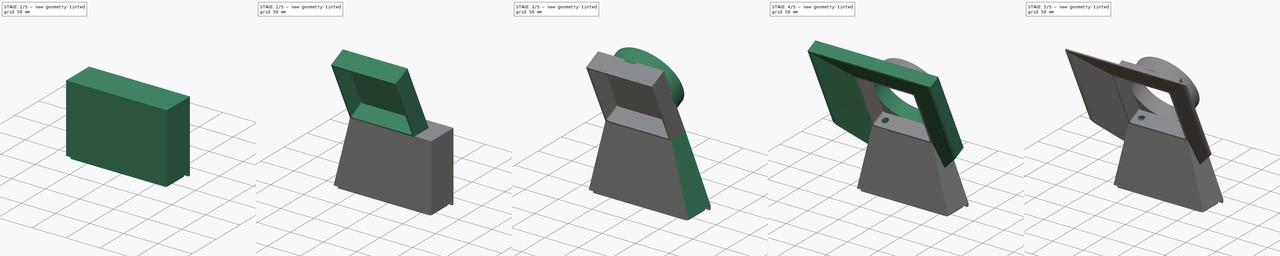
[diagram: build sequence overview — one tinted view per stage of 5, left to right]
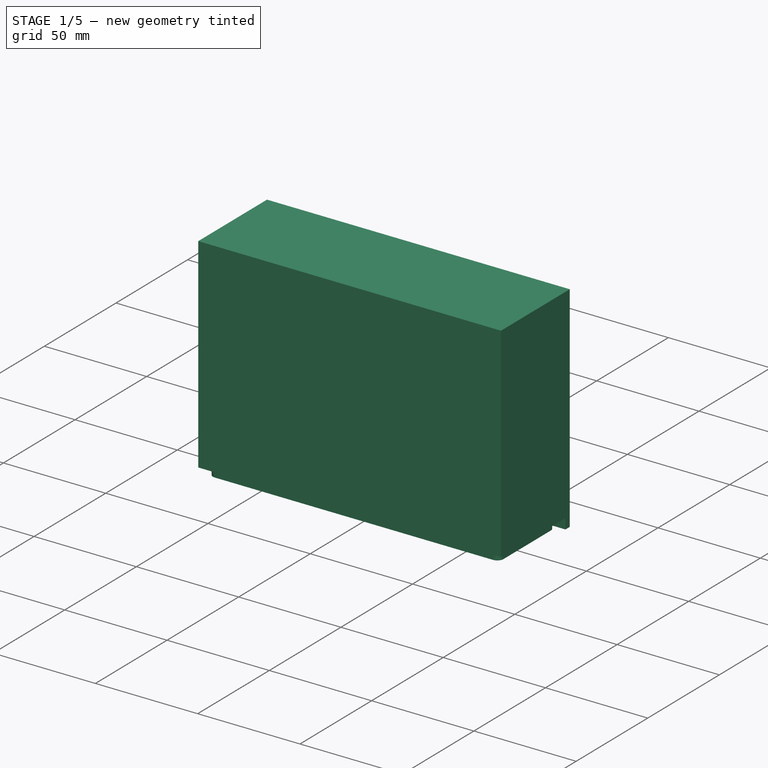
[diagram: stage 1 of 5 — iso view after this stage's code; geometry added in this stage tinted green]
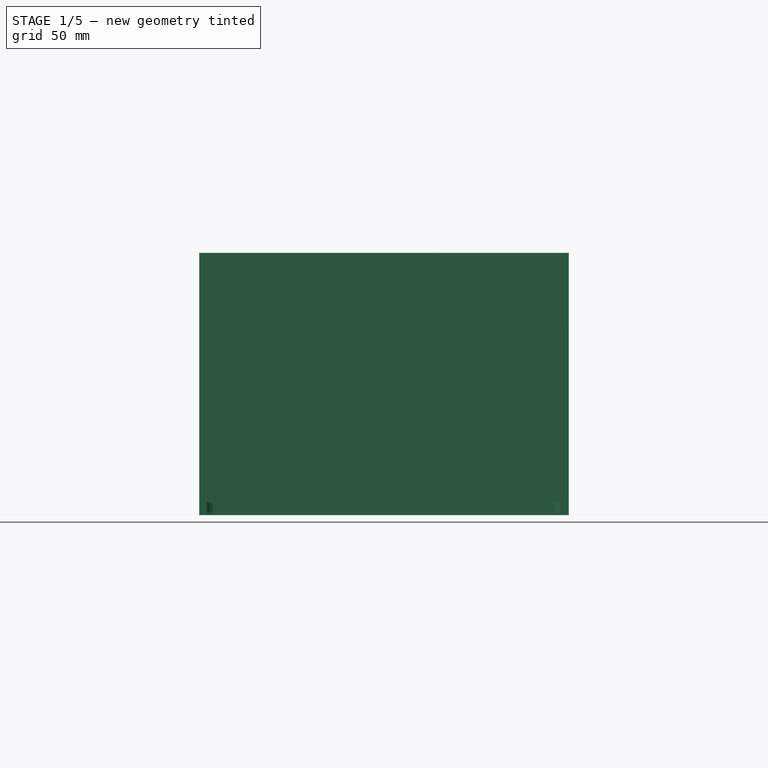
[diagram: stage 1 of 5 — front view after this stage's code; geometry added in this stage tinted green]
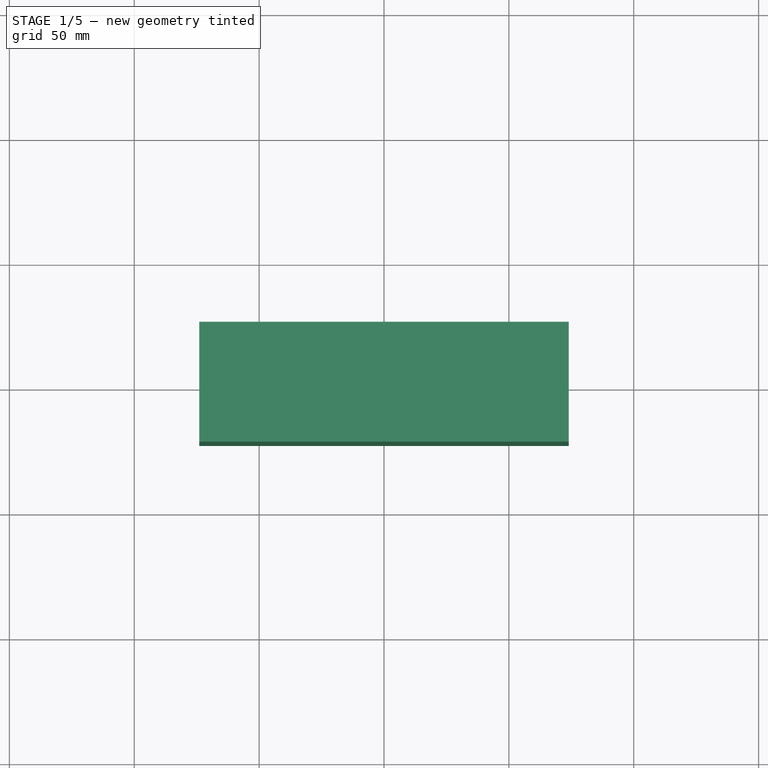
[diagram: stage 1 of 5 — top view after this stage's code; geometry added in this stage tinted green]
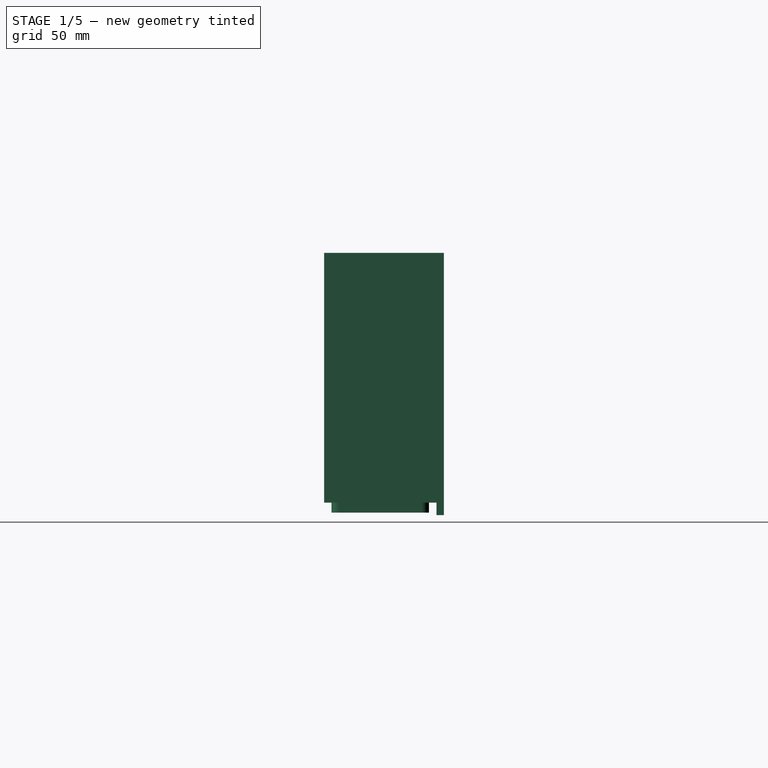
[diagram: stage 1 of 5 — right view after this stage's code; geometry added in this stage tinted green]
FCSTD DOCUMENT  (FreeCAD 1.0R39319 (Git))
Label: SolderingVent
License: All rights reserved
LicenseURL: https://en.wikipedia.org/wiki/All_rights_reserved
objects: Sketcher::SketchObject×13, PartDesign::Pocket×7, PartDesign::Pad×6, PartDesign::Fillet×4, PartDesign::Chamfer×2, PartDesign::Body×1
note: 84 computed .brp shape members not serialized (recipe doc carries the construction recipe); baked Part::Feature solids carry a one-line shape summary decoded from their .brp

FEATURE [Sketcher::SketchObject] Sketch
  ArcFitTolerance = 1e-06
  AttachmentSupport = -> [XY_Plane]
  FullyConstrained = true
  MakeInternals = false
  MapMode = 5
  sketch-geometry (4):
    g0: LineSegment StartX=-71 StartY=19.5 StartZ=0 EndX=-71 EndY=-19.5 EndZ=0
    g1: LineSegment StartX=-71 StartY=-19.5 StartZ=0 EndX=71 EndY=-19.5 EndZ=0
    g2: LineSegment StartX=71 StartY=-19.5 StartZ=0 EndX=71 EndY=19.5 EndZ=0
    g3: LineSegment StartX=71 StartY=19.5 StartZ=0 EndX=-71 EndY=19.5 EndZ=0
  constraints (12):
    c: Coincident(g0,g1)
    c: Coincident(g1,g2)
    c: Coincident(g2,g3)
    c: Coincident(g3,g0)
    c: Vertical(g0)
    c: Vertical(g2)
    c: Horizontal(g1)
    c: Horizontal(g3)
    c: Distance(g0,g2) = 142
    c: Distance(g1,g3) = 39
    c: Distance(g-2,g0) = 71
    c: Distance(g1,g-1) = 19.5
FEATURE [PartDesign::Pad] Pad
  Direction = (0,0,1)
  Length = 4
  Length2 = 10
  Profile = -> Sketch
  ReferenceAxis = -> Sketch [N_Axis]
  Refine = true
  Suppressed = false
  Type = 0
FEATURE [Sketcher::SketchObject] Sketch001
  ArcFitTolerance = 1e-06
  FullyConstrained = true
  MakeInternals = false
  MapMode = 5
  Placement = pos=(0,0,4) rot=(0,0,1;0rad)
  sketch-geometry (4):
    g0: LineSegment StartX=-74 StartY=25.5 StartZ=0 EndX=-74 EndY=-22.5 EndZ=0
    g1: LineSegment StartX=-74 StartY=-22.5 StartZ=0 EndX=74 EndY=-22.5 EndZ=0
    g2: LineSegment StartX=74 StartY=-22.5 StartZ=0 EndX=74 EndY=25.5 EndZ=0
    g3: LineSegment StartX=74 StartY=25.5 StartZ=0 EndX=-74 EndY=25.5 EndZ=0
  constraints (12):
    c: Coincident(g0,g1)
    c: Coincident(g1,g2)
    c: Coincident(g2,g3)
    c: Coincident(g3,g0)
    c: Vertical(g0)
    c: Vertical(g2)
    c: Horizontal(g1)
    c: Horizontal(g3)
    c: Distance(g0,g2) = 148
    c: Distance(g1,g3) = 48
    c: Distance(g-2,g0) = 74
    c: Distance(g1,g-1) = 22.5
FEATURE [PartDesign::Pad] Pad001
  BaseFeature = -> Pad
  Direction = (0,0,1)
  Length = 100
  Length2 = 10
  Profile = -> Sketch001
  ReferenceAxis = -> Sketch001 [N_Axis]
  Refine = true
  Suppressed = false
  Type = 0
FEATURE [PartDesign::Fillet] Fillet
  Base = -> Pad001 [Edge5,Edge1,Edge2,Edge8]
  BaseFeature = -> Pad001
  Radius = 3
  Refine = true
  SupportTransform = false
  Suppressed = false
  UseAllEdges = false
FEATURE [Sketcher::SketchObject] Sketch002
  ArcFitTolerance = 1e-06
  AttachmentSupport = -> [Fillet]
  FullyConstrained = true
  MakeInternals = false
  MapMode = 5
  Placement = pos=(0,0,4) rot=(1,0,0;3.14159rad)
  sketch-geometry (4):
    g0: LineSegment StartX=-74 StartY=-22.5 StartZ=0 EndX=-74 EndY=-25.5 EndZ=0
    g1: LineSegment StartX=-74 StartY=-25.5 StartZ=0 EndX=74 EndY=-25.5 EndZ=0
    g2: LineSegment StartX=74 StartY=-25.5 StartZ=0 EndX=74 EndY=-22.5 EndZ=0
    g3: LineSegment StartX=74 StartY=-22.5 StartZ=0 EndX=-74 EndY=-22.5 EndZ=0
  constraints (12):
    c: Coincident(g0,g1)
    c: Coincident(g1,g2)
    c: Coincident(g2,g3)
    c: Coincident(g3,g0)
    c: Vertical(g0)
    c: Vertical(g2)
    c: Horizontal(g1)
    c: Horizontal(g3)
    c: Distance(g0,g2) = 148
    c: Distance(g1,g3) = 3
    c: Distance(g-2,g0) = 74
    c: Distance(g1,g-1) = 25.5
FEATURE [PartDesign::Pad] Pad002
  BaseFeature = -> Fillet
  Direction = (0,0,-1)
  Length = 5
  Length2 = 10
  Profile = -> Sketch002
  ReferenceAxis = -> Sketch002 [N_Axis]
  Refine = true
  Suppressed = false
  Type = 0
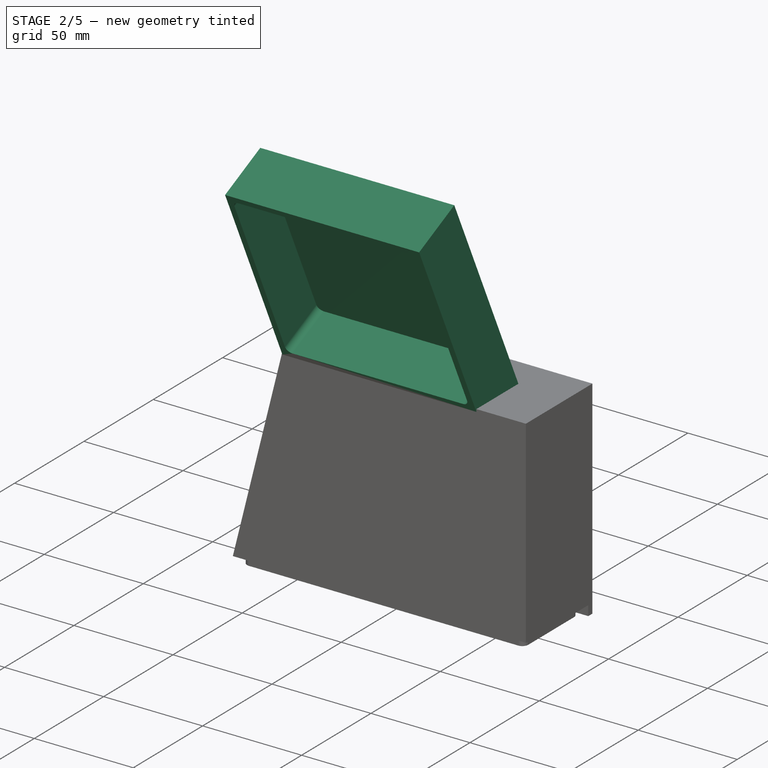
[diagram: stage 2 of 5 — iso view after this stage's code; geometry added in this stage tinted green]
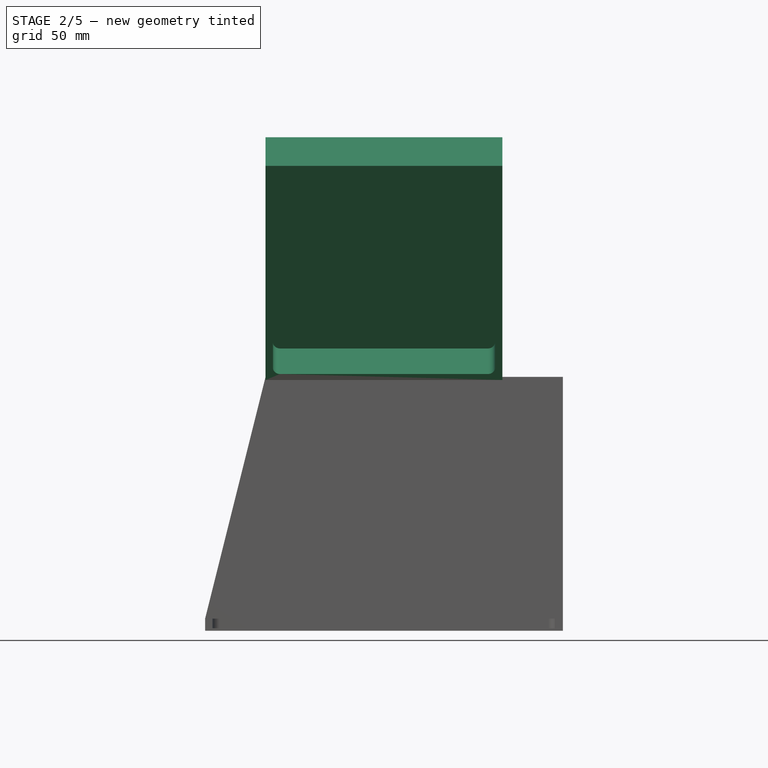
[diagram: stage 2 of 5 — front view after this stage's code; geometry added in this stage tinted green]
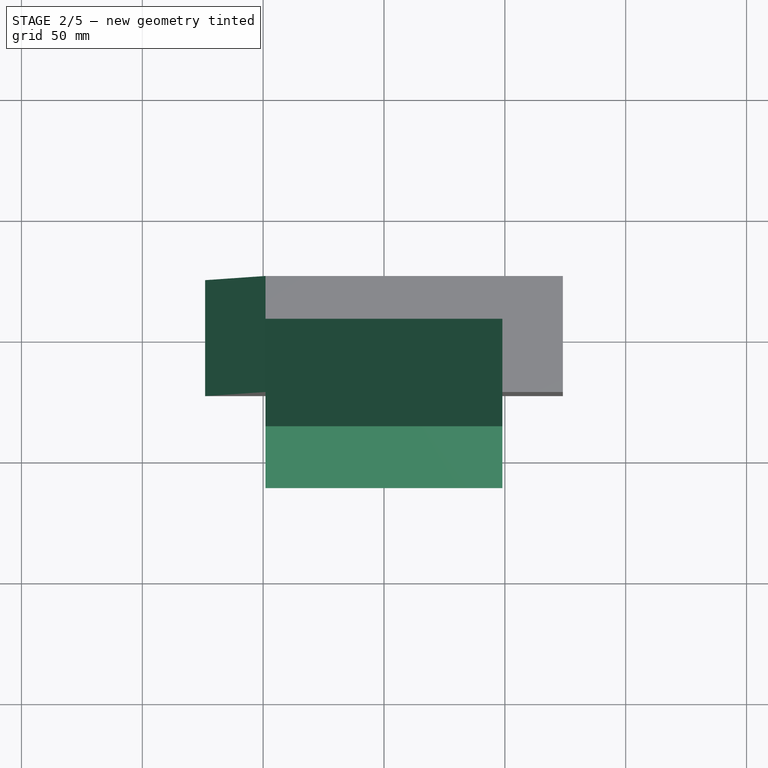
[diagram: stage 2 of 5 — top view after this stage's code; geometry added in this stage tinted green]
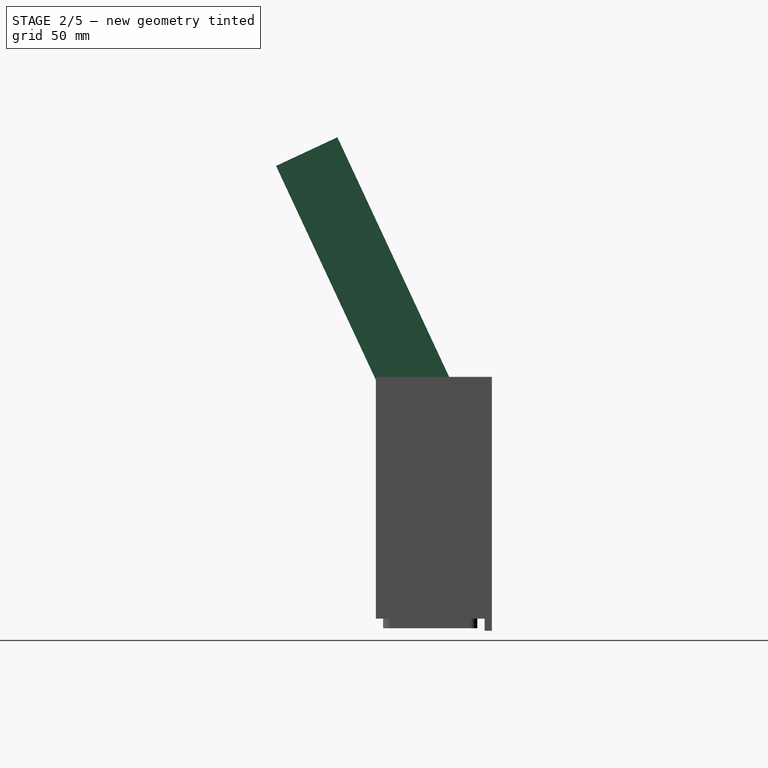
[diagram: stage 2 of 5 — right view after this stage's code; geometry added in this stage tinted green]
FEATURE [Sketcher::SketchObject] Sketch003
  ArcFitTolerance = 1e-06
  AttachmentOffset = pos=(0,-2,8) rot=(1,0,0;0.436332rad)
  AttachmentSupport = -> [Pad002]
  FullyConstrained = true
  MakeInternals = false
  MapMode = 5
  Placement = pos=(0,-2,112) rot=(1,0,0;0.436332rad)
  sketch-geometry (4):
    g0: LineSegment StartX=-49 StartY=5.5 StartZ=0 EndX=-49 EndY=-22.5 EndZ=0
    g1: LineSegment StartX=-49 StartY=-22.5 StartZ=0 EndX=49 EndY=-22.5 EndZ=0
    g2: LineSegment StartX=49 StartY=-22.5 StartZ=0 EndX=49 EndY=5.5 EndZ=0
    g3: LineSegment StartX=49 StartY=5.5 StartZ=0 EndX=-49 EndY=5.5 EndZ=0
  constraints (12):
    c: Coincident(g0,g1)
    c: Coincident(g1,g2)
    c: Coincident(g2,g3)
    c: Coincident(g3,g0)
    c: Vertical(g0)
    c: Vertical(g2)
    c: Horizontal(g1)
    c: Horizontal(g3)
    c: Distance(g0,g2) = 98
    c: Distance(g1,g3) = 28
    c: Distance(g-1,g3) = 5.5
    c: Distance(g2,g-2) = 49
FEATURE [PartDesign::Pad] Pad003
  BaseFeature = -> Pad002
  Direction = (0,-0.422618,0.906308)
  Length = 98
  Length2 = 20
  Profile = -> Sketch003
  ReferenceAxis = -> Sketch003 [N_Axis]
  Refine = true
  Suppressed = false
  Type = 4
FEATURE [Sketcher::SketchObject] Sketch004
  ArcFitTolerance = 1e-06
  AttachmentSupport = -> [Pad003]
  ExternalGeometry = -> [Pad003]
  FullyConstrained = true
  MakeInternals = false
  MapMode = 5
  Placement = pos=(0,20.8638,9.72894) rot=(1,0,0;2.00713rad)
  sketch-geometry (4):
    g0: LineSegment StartX=-46 StartY=197.352 StartZ=0 EndX=-46 EndY=105.352 EndZ=0
    g1: LineSegment StartX=-46 StartY=105.352 StartZ=0 EndX=46 EndY=105.352 EndZ=0
    g2: LineSegment StartX=46 StartY=105.352 StartZ=0 EndX=46 EndY=197.352 EndZ=0
    g3: LineSegment StartX=46 StartY=197.352 StartZ=0 EndX=-46 EndY=197.352 EndZ=0
  constraints (12):
    c: Coincident(g0,g1)
    c: Coincident(g1,g2)
    c: Coincident(g2,g3)
    c: Coincident(g3,g0)
    c: Vertical(g0)
    c: Vertical(g2)
    c: Horizontal(g1)
    c: Horizontal(g3)
    c: Distance(g0,g2) = 92
    c: Distance(g1,g3) = 92
    c: Distance(g-2,g0) = 46
    c: Distance(g3,g-3) = 3
FEATURE [PartDesign::Pocket] Pocket
  BaseFeature = -> Pad003
  Direction = (0,0.906308,0.422618)
  Length = 25
  Length2 = 5
  Profile = -> Sketch004
  ReferenceAxis = -> Sketch004 [N_Axis]
  Refine = true
  Suppressed = false
  Type = 0
FEATURE [PartDesign::Fillet] Fillet001
  Base = -> Pocket [Edge62,Edge63,Edge67,Edge65]
  BaseFeature = -> Pocket
  Radius = 3
  Refine = true
  SupportTransform = false
  Suppressed = false
  UseAllEdges = false
FEATURE [Sketcher::SketchObject] Sketch005
  ArcFitTolerance = 1e-06
  AttachmentSupport = -> [Fillet001]
  ExternalGeometry = -> [Fillet001]
  FullyConstrained = true
  MakeInternals = false
  MapMode = 5
  Placement = pos=(0,-22.5,0) rot=(1,0,0;1.5708rad)
  sketch-geometry (3):
    g0: LineSegment StartX=-74 StartY=104 StartZ=0 EndX=-49 EndY=104 EndZ=0
    g1: LineSegment StartX=-49 StartY=104 StartZ=0 EndX=-74 EndY=4 EndZ=0
    g2: LineSegment StartX=-74 StartY=4 StartZ=0 EndX=-74 EndY=104 EndZ=0
  constraints (6):
    c: Coincident(g-4,g0)
    c: Coincident(g0,g-3)
    c: Coincident(g0,g1)
    c: Coincident(g1,g-4)
    c: Coincident(g1,g2)
    c: Coincident(g2,g0)
FEATURE [PartDesign::Pocket] Pocket001
  BaseFeature = -> Fillet001
  Direction = (0,1,-2e-16)
  Length = 5
  Length2 = 5
  Profile = -> Sketch005
  ReferenceAxis = -> Sketch005 [N_Axis]
  Refine = true
  Suppressed = false
  Type = 1
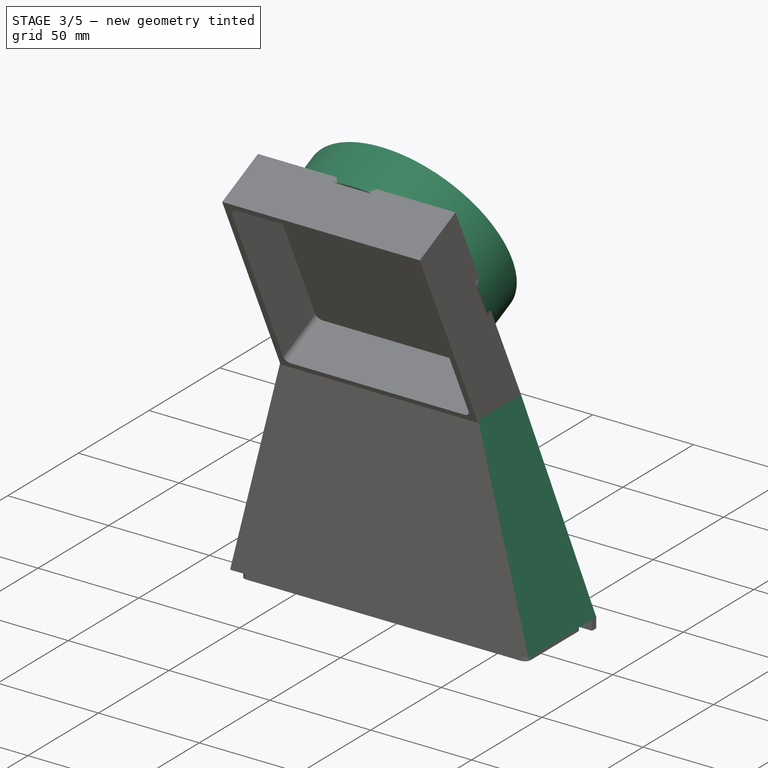
[diagram: stage 3 of 5 — iso view after this stage's code; geometry added in this stage tinted green]
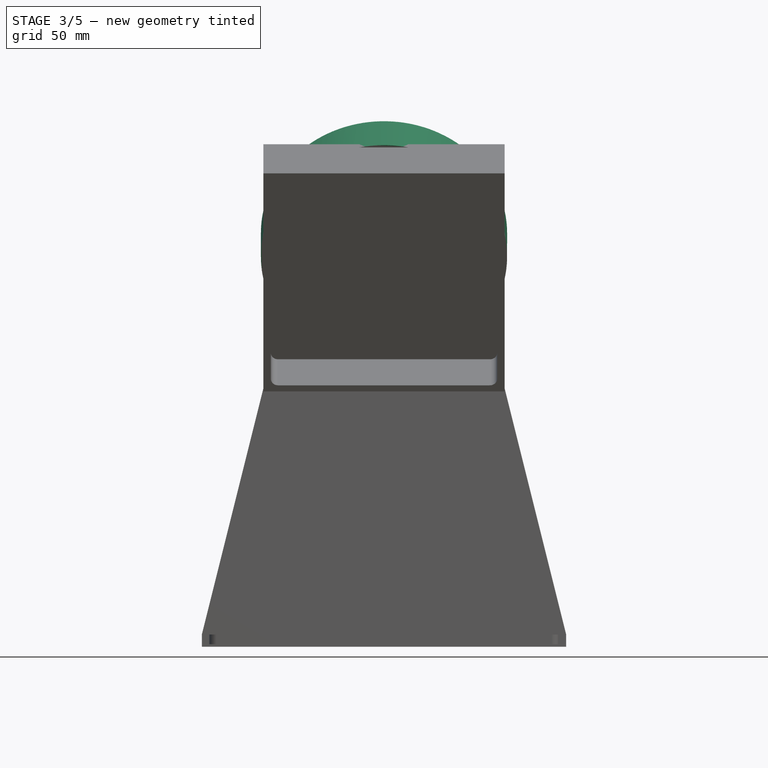
[diagram: stage 3 of 5 — front view after this stage's code; geometry added in this stage tinted green]
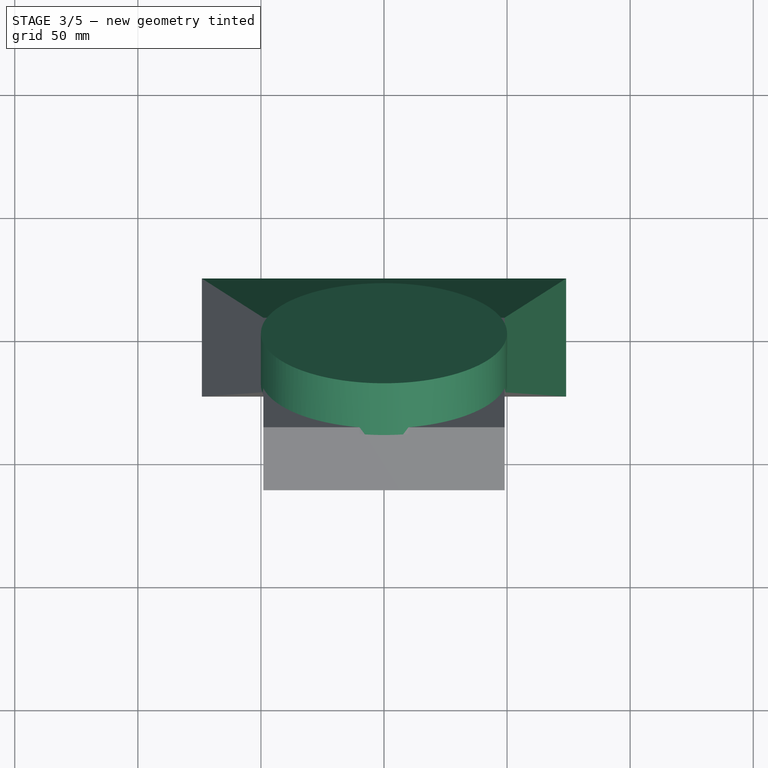
[diagram: stage 3 of 5 — top view after this stage's code; geometry added in this stage tinted green]
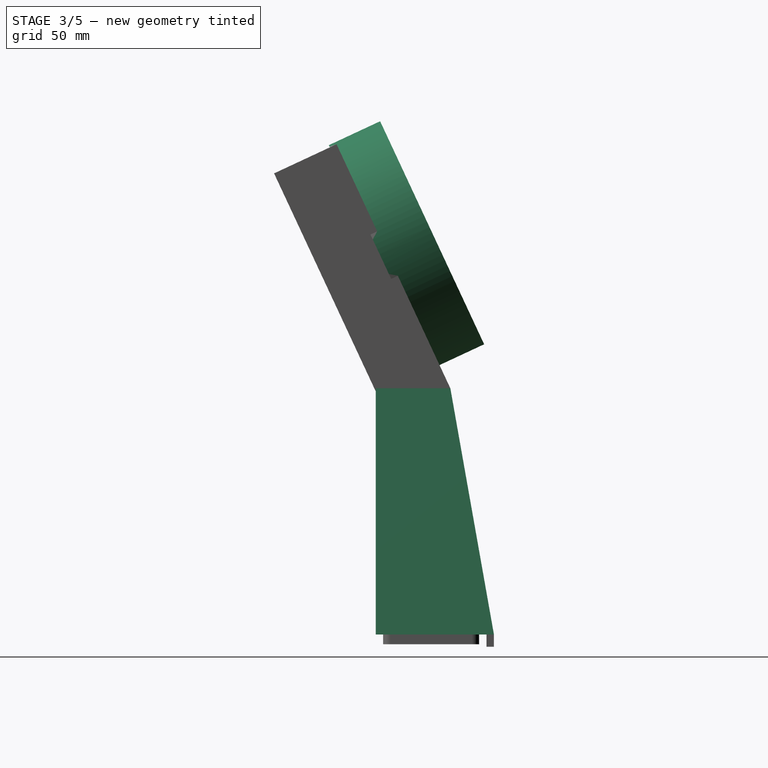
[diagram: stage 3 of 5 — right view after this stage's code; geometry added in this stage tinted green]
FEATURE [Sketcher::SketchObject] Sketch006
  ArcFitTolerance = 1e-06
  AttachmentSupport = -> [Pocket001]
  ExternalGeometry = -> [Pocket001]
  FullyConstrained = true
  MakeInternals = false
  MapMode = 5
  Placement = pos=(0,-22.5,0) rot=(1,0,0;1.5708rad)
  sketch-geometry (3):
    g0: LineSegment StartX=49 StartY=104 StartZ=0 EndX=74 EndY=4 EndZ=0
    g1: LineSegment StartX=74 StartY=4 StartZ=0 EndX=74 EndY=104 EndZ=0
    g2: LineSegment StartX=74 StartY=104 StartZ=0 EndX=49 EndY=104 EndZ=0
  constraints (6):
    c: Coincident(g-4,g0)
    c: Coincident(g0,g-3)
    c: Coincident(g0,g1)
    c: Coincident(g1,g-4)
    c: Coincident(g1,g2)
    c: Coincident(g2,g0)
FEATURE [PartDesign::Pocket] Pocket002
  BaseFeature = -> Pocket001
  Direction = (0,1,-2e-16)
  Length = 5
  Length2 = 5
  Profile = -> Sketch006
  ReferenceAxis = -> Sketch006 [N_Axis]
  Refine = true
  Suppressed = false
  Type = 1
FEATURE [Sketcher::SketchObject] Sketch007
  ArcFitTolerance = 1e-06
  AttachmentSupport = -> [Pocket002]
  ExternalGeometry = -> [Pocket002]
  FullyConstrained = true
  MakeInternals = false
  MapMode = 5
  Placement = pos=(-49,0,0) rot=(0.57735,-0.57735,-0.57735;2.0944rad)
  sketch-geometry (3):
    g0: LineSegment StartX=-7.79904 StartY=104 StartZ=0 EndX=-25.5 EndY=4 EndZ=0
    g1: LineSegment StartX=-25.5 StartY=4 StartZ=0 EndX=-25.5 EndY=104 EndZ=0
    g2: LineSegment StartX=-25.5 StartY=104 StartZ=0 EndX=-7.79904 EndY=104 EndZ=0
  constraints (6):
    c: Coincident(g-4,g0)
    c: Coincident(g0,g-3)
    c: Coincident(g0,g1)
    c: Coincident(g1,g-4)
    c: Coincident(g1,g2)
    c: Coincident(g2,g0)
FEATURE [PartDesign::Pocket] Pocket003
  BaseFeature = -> Pocket002
  Direction = (1,0,0)
  Length = 1000
  Length2 = 1000
  Profile = -> Sketch007
  ReferenceAxis = -> Sketch007 [N_Axis]
  Refine = true
  Suppressed = false
  Type = 4
FEATURE [Sketcher::SketchObject] Sketch008
  ArcFitTolerance = 1e-06
  AttachmentOffset = pos=(0,0,-3) rot=(0,0,1;0rad)
  AttachmentSupport = -> [Pocket003]
  ExternalGeometry = -> [Pocket003]
  FullyConstrained = true
  MakeInternals = false
  MapMode = 5
  Placement = pos=(0,43.5215,20.2944) rot=(0,0.5373,0.843391;3.14159rad)
  sketch-geometry (1):
    g0: Circle CenterX=0 CenterY=151.352 CenterZ=0 NormalX=0 NormalY=0 NormalZ=1 AngleXU=0 Radius=50
  constraints (3):
    c: Diameter(g0) = 100
    c: Distance(g0,g-3) = 49
    c: PointOnObject(g0,g-2)
FEATURE [PartDesign::Pad] Pad004
  BaseFeature = -> Pocket003
  Direction = (0,0.906308,0.422618)
  Length = 23
  Length2 = 10
  Profile = -> Sketch008
  ReferenceAxis = -> Sketch008 [N_Axis]
  Refine = true
  Suppressed = false
  Type = 0
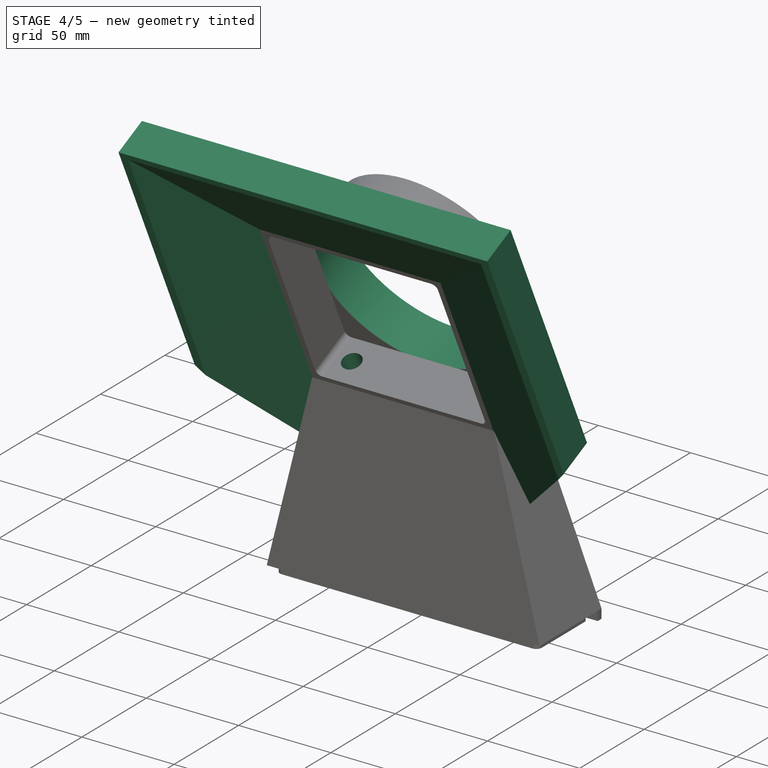
[diagram: stage 4 of 5 — iso view after this stage's code; geometry added in this stage tinted green]
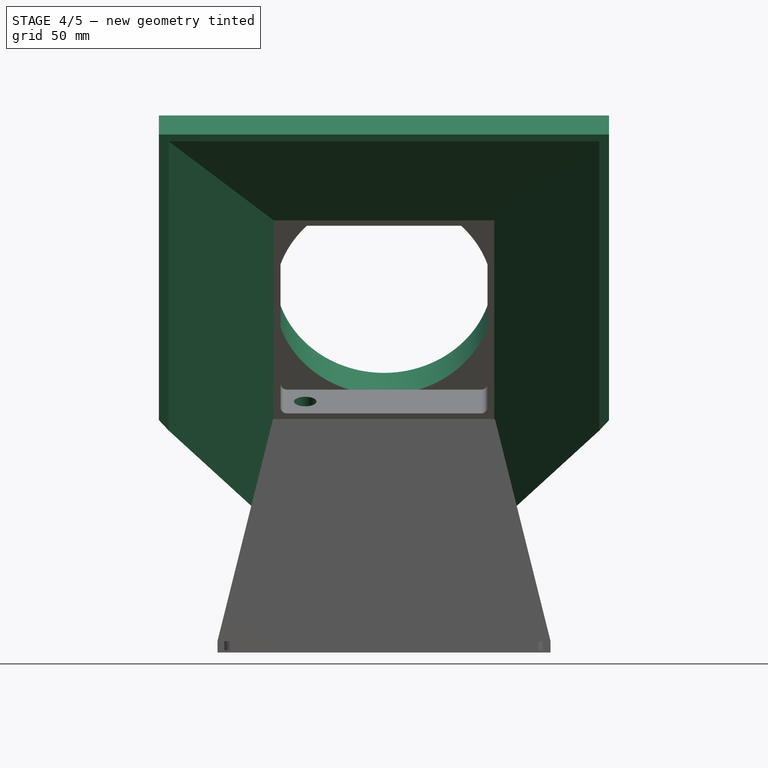
[diagram: stage 4 of 5 — front view after this stage's code; geometry added in this stage tinted green]
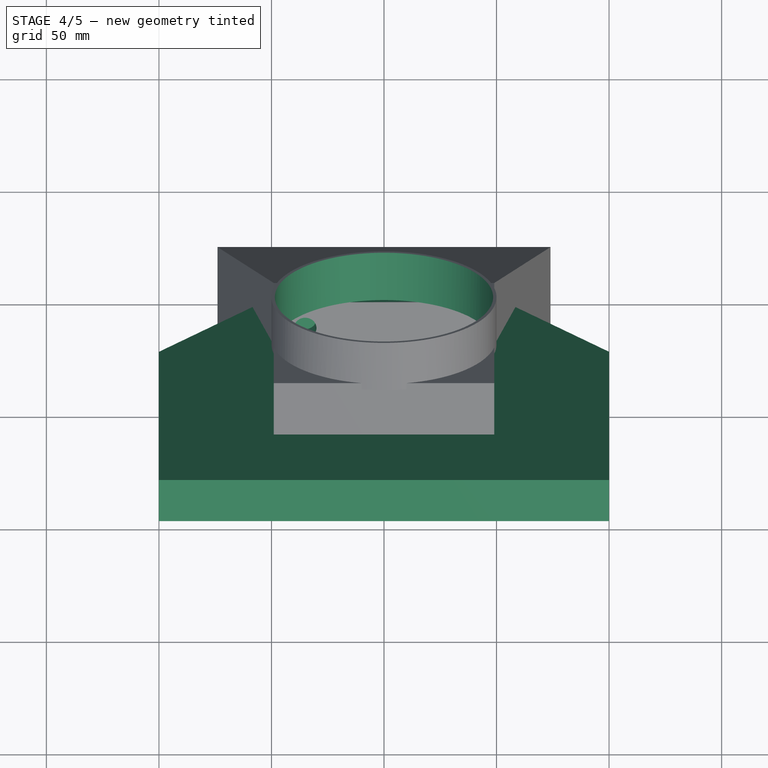
[diagram: stage 4 of 5 — top view after this stage's code; geometry added in this stage tinted green]
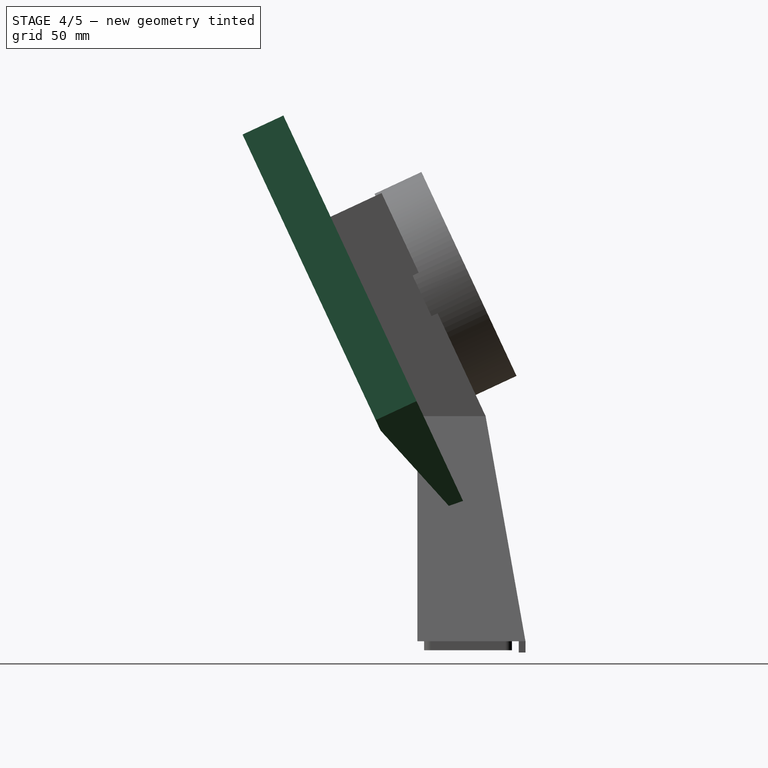
[diagram: stage 4 of 5 — right view after this stage's code; geometry added in this stage tinted green]
FEATURE [Sketcher::SketchObject] Sketch009
  ArcFitTolerance = 1e-06
  AttachmentSupport = -> [Pad004]
  ExternalGeometry = -> [Pad004]
  FullyConstrained = true
  MakeInternals = false
  MapMode = 5
  Placement = pos=(-8.5e-15,64.3665,30.0146) rot=(0,0.5373,0.843391;3.14159rad)
  sketch-geometry (1):
    g0: Circle CenterX=-8.9e-15 CenterY=151.352 CenterZ=0 NormalX=0 NormalY=0 NormalZ=1 AngleXU=0 Radius=48.5
  constraints (2):
    c: Diameter(g0) = 97
    c: Coincident(g-3,g0)
FEATURE [PartDesign::Pocket] Pocket004
  BaseFeature = -> Pad004
  Direction = (0,-0.906308,-0.422618)
  Length = 23
  Length2 = 5
  Profile = -> Sketch009
  ReferenceAxis = -> Sketch009 [N_Axis]
  Refine = true
  Suppressed = false
  Type = 0
FEATURE [Sketcher::SketchObject] Sketch011
  ArcFitTolerance = 1e-06
  AttachmentOffset = pos=(0,0,-3) rot=(0,0,1;0rad)
  AttachmentSupport = -> [Pocket004]
  FullyConstrained = true
  MakeInternals = false
  MapMode = 5
  Placement = pos=(0,23.5827,10.9968) rot=(1,0,0;2.00713rad)
  sketch-geometry (8):
    g0: LineSegment StartX=-49 StartY=200 StartZ=0 EndX=49 EndY=200 EndZ=0
    g1: LineSegment StartX=-49 StartY=200 StartZ=0 EndX=-49 EndY=50 EndZ=0
    g2: LineSegment StartX=49 StartY=200 StartZ=0 EndX=49 EndY=50 EndZ=0
    g3: LineSegment StartX=-100 StartY=250 StartZ=0 EndX=100 EndY=250 EndZ=0
    g4: LineSegment StartX=-100 StartY=250 StartZ=0 EndX=-100 EndY=110 EndZ=0
    g5: LineSegment StartX=-100 StartY=110 StartZ=0 EndX=-49 EndY=50 EndZ=0
    g6: LineSegment StartX=100 StartY=250 StartZ=0 EndX=100 EndY=110 EndZ=0
    g7: LineSegment StartX=49 StartY=50 StartZ=0 EndX=100 EndY=110 EndZ=0
  constraints (24):
    c: Distance(g0) = 98
    c: Horizontal(g0)
    c: Distance(g-1,g0) = 200
    c: Distance(g0,g-2) = 49
    c: Distance(g1) = 150
    c: Coincident(g1,g0)
    c: Vertical(g1)
    c: Distance(g2) = 150
    c: Coincident(g2,g0)
    c: Vertical(g2)
    c: Distance(g3) = 200
    c: Horizontal(g3)
    c: Distance(g0,g3) = 50
    c: Distance(g3,g-2) = 100
    c: Distance(g4) = 140
    c: Coincident(g4,g3)
    c: Vertical(g4)
    c: Coincident(g5,g4)
    c: Coincident(g5,g1)
    c: Distance(g6) = 140
    c: Coincident(g6,g3)
    c: Vertical(g6)
    c: Coincident(g7,g2)
    c: Coincident(g7,g6)
FEATURE [PartDesign::Pad] Pad005
  BaseFeature = -> Pocket004
  Direction = (0,-0.906308,-0.422618)
  Length = 20
  Length2 = 10
  Profile = -> Sketch011
  ReferenceAxis = -> Sketch011 [N_Axis]
  Refine = true
  Suppressed = false
  Type = 0
FEATURE [PartDesign::Chamfer] Chamfer
  Angle = 70
  Base = -> Pad005 [Edge24,Edge22,Edge20]
  BaseFeature = -> Pad005
  ChamferType = 2
  FlipDirection = false
  Refine = true
  Size = 16.99
  Size2 = 1
  SupportTransform = false
  Suppressed = false
  UseAllEdges = false
FEATURE [Sketcher::SketchObject] Sketch012
  ArcFitTolerance = 1e-06
  FullyConstrained = true
  MakeInternals = false
  MapMode = 5
  Placement = pos=(0,-44.5236,95.4811) rot=(1,0,0;0.436332rad)
  sketch-geometry (1):
    g0: Circle CenterX=-35 CenterY=35.5206 CenterZ=0 NormalX=0 NormalY=0 NormalZ=1 AngleXU=0 Radius=5
  constraints (3):
    c: Diameter(g0) = 10
    c: Distance(g0,g-2) = 35
    c: Distance(g0,g-3) = 12.5
FEATURE [PartDesign::Pocket] Pocket005
  BaseFeature = -> Chamfer
  Direction = (0,0.422618,-0.906308)
  Length = 10
  Length2 = 5
  Profile = -> Sketch012
  ReferenceAxis = -> Sketch012 [N_Axis]
  Refine = true
  Suppressed = false
  Type = 0
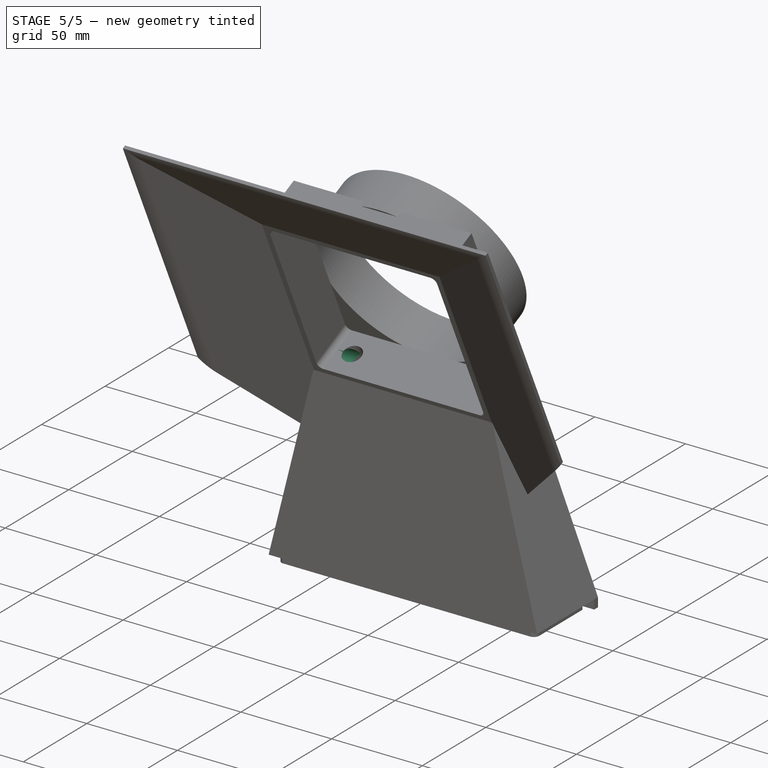
[diagram: stage 5 of 5 — iso view after this stage's code; geometry added in this stage tinted green]
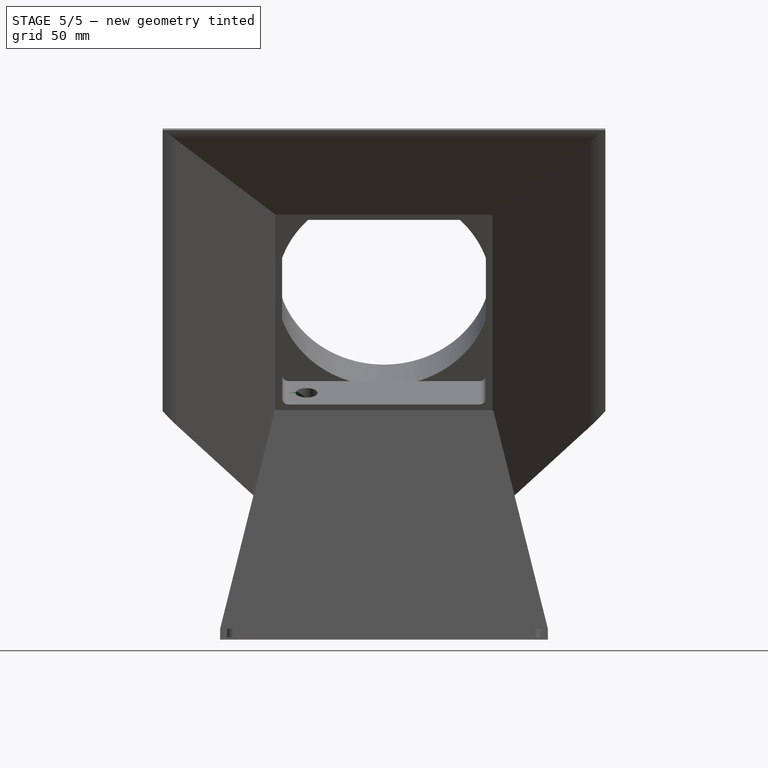
[diagram: stage 5 of 5 — front view after this stage's code; geometry added in this stage tinted green]
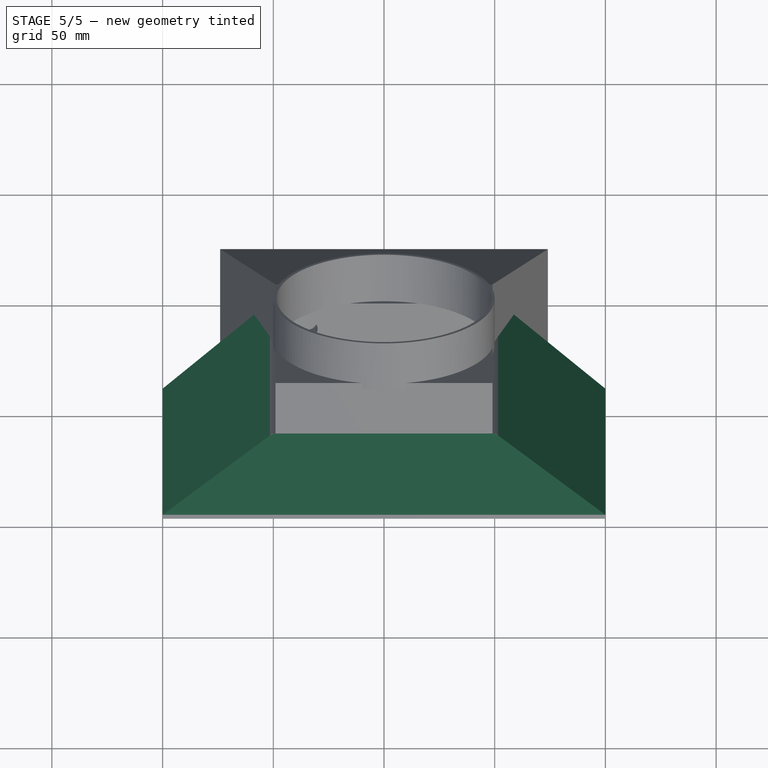
[diagram: stage 5 of 5 — top view after this stage's code; geometry added in this stage tinted green]
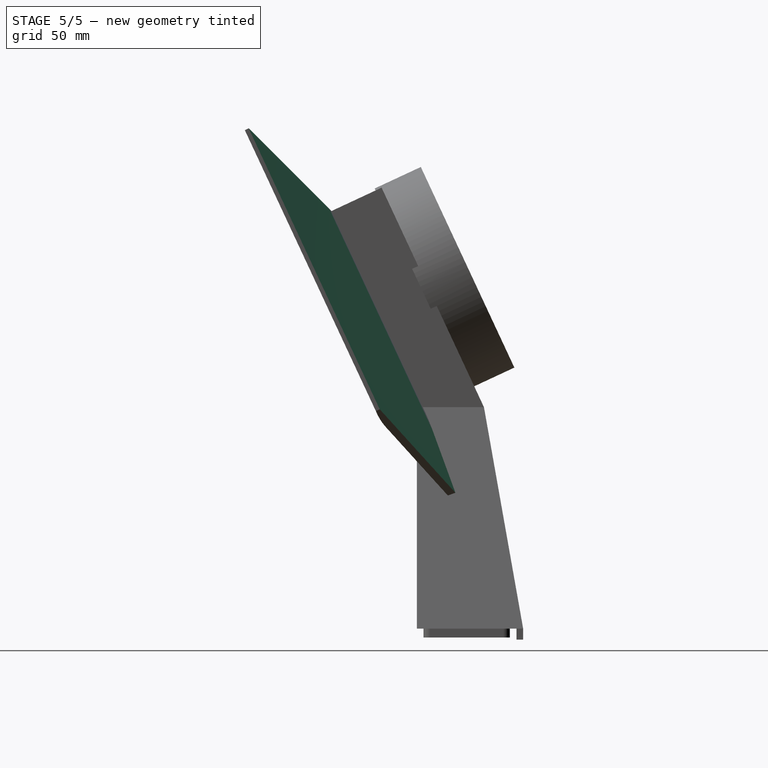
[diagram: stage 5 of 5 — right view after this stage's code; geometry added in this stage tinted green]
FEATURE [Sketcher::SketchObject] Sketch013
  ArcFitTolerance = 1e-06
  AttachmentSupport = -> [Pocket005]
  ExternalGeometry = -> [Pocket005,Fillet001]
  FullyConstrained = true
  MakeInternals = false
  MapMode = 5
  Placement = pos=(-49,0,0) rot=(0.57735,-0.57735,-0.57735;2.0944rad)
  sketch-geometry (1):
    g0: Circle CenterX=10.2178 CenterY=105.961 CenterZ=0 NormalX=0 NormalY=0 NormalZ=1 AngleXU=0 Radius=5
  constraints (3):
    c: Diameter(g0) = 10
    c: Distance(g0,g-3) = 100
    c: Distance(g0,g-4) = 12.5
FEATURE [PartDesign::Pocket] Pocket006
  BaseFeature = -> Pocket005
  Direction = (1,0,0)
  Length = 14
  Length2 = 5
  Profile = -> Sketch013
  ReferenceAxis = -> Sketch013 [N_Axis]
  Refine = true
  Suppressed = false
  Type = 4
FEATURE [PartDesign::Chamfer] Chamfer001
  Angle = 20
  Base = -> Pocket006 [Edge58,Edge64,Edge63]
  BaseFeature = -> Pocket006
  ChamferType = 2
  FlipDirection = false
  Refine = true
  Size = 49.64
  Size2 = 1
  SupportTransform = false
  Suppressed = false
  UseAllEdges = false
FEATURE [PartDesign::Fillet] Fillet002
  Base = -> Chamfer001 [Edge58,Edge60,Edge20]
  BaseFeature = -> Chamfer001
  Radius = 18
  Refine = true
  SupportTransform = false
  Suppressed = false
  UseAllEdges = false
FEATURE [PartDesign::Fillet] Fillet003
  Base = -> Fillet002 [Edge53,Edge23]
  BaseFeature = -> Fillet002
  Radius = 7
  Refine = true
  SupportTransform = false
  Suppressed = false
  UseAllEdges = false
FEATURE [PartDesign::Body] Body
  AllowCompound = false
  Group = -> [Sketch,Pad,Sketch001,Pad001,Fillet,Sketch002,Pad002,Sketch003,Pad003,Sketch004,Pocket,Fillet001,Sketch005,Pocket001,Sketch006,Pocket002,Sketch007,Pocket003,Sketch008,Pad004,Sketch009,Pocket004,Sketch011,Pad005,Chamfer,Sketch012,Pocket005,Sketch013,Pocket006,Chamfer001,Fillet002,Fillet003]
  Origin = -> Origin
  Tip = -> Fillet003
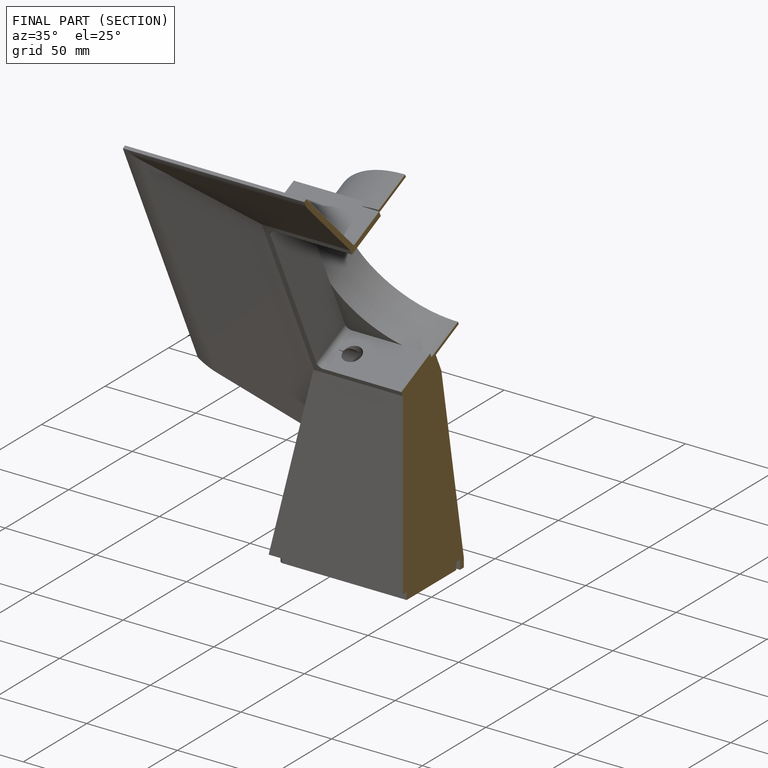
[diagram: finished part — half-section view (interior)]
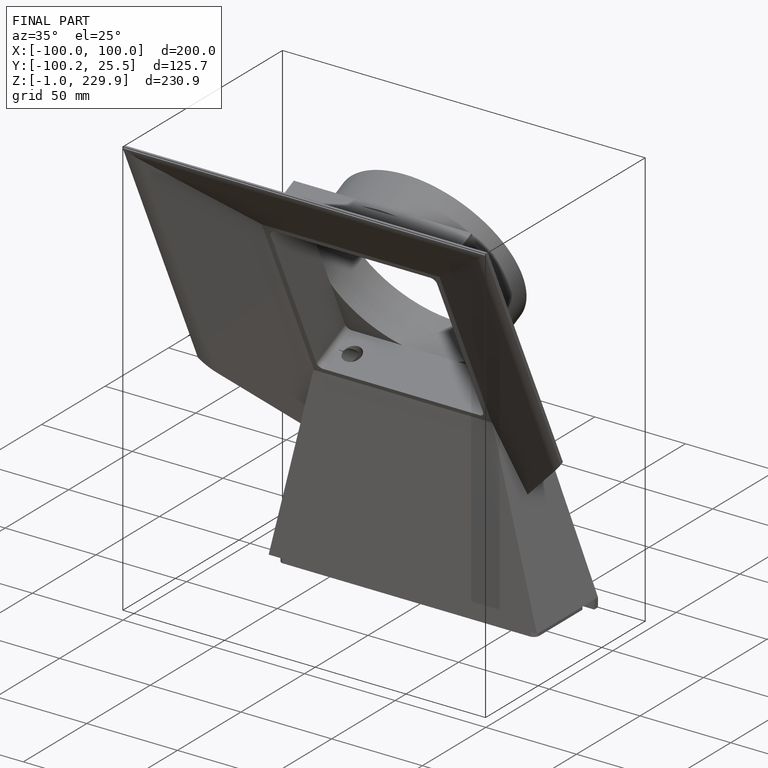
[diagram: finished part — iso view with bounding-box wireframe]
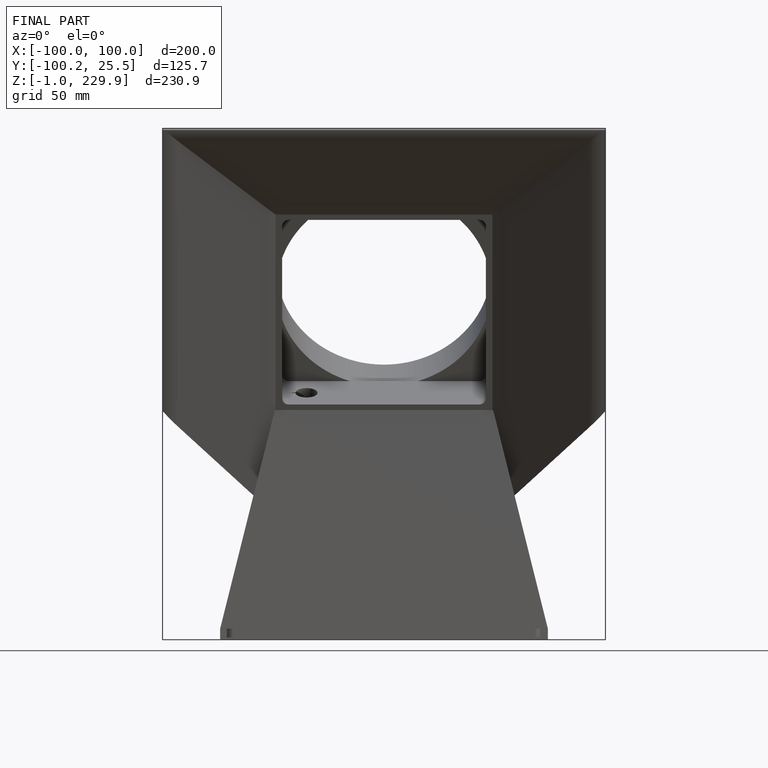
[diagram: finished part — front view with bounding-box wireframe]
